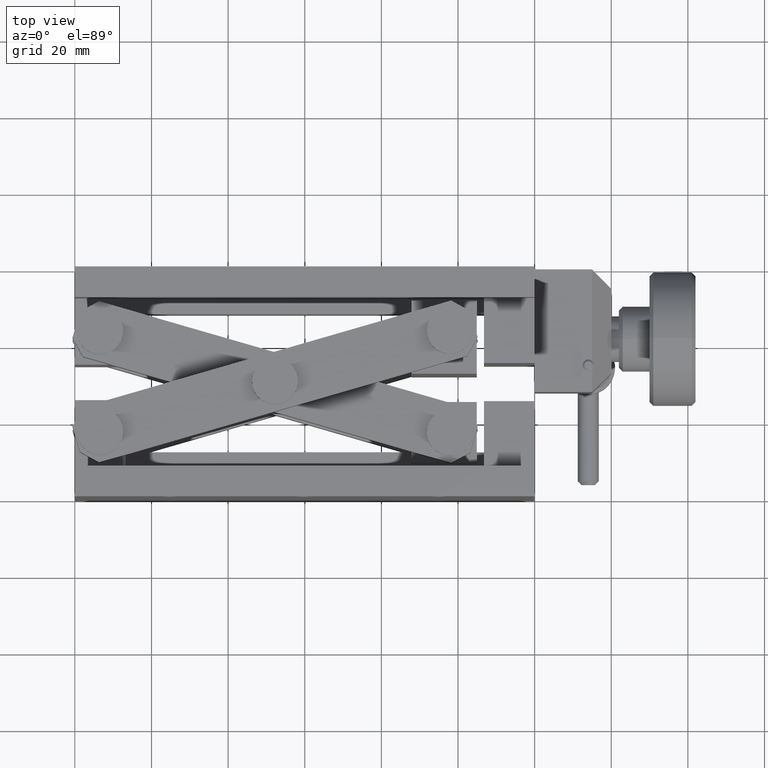
[diagram: clean part render]
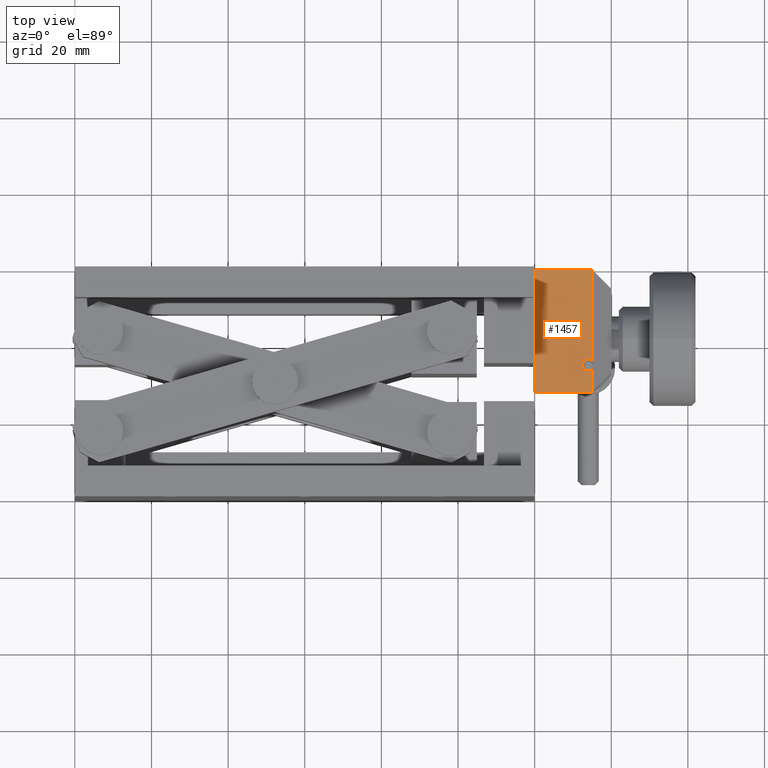
[diagram: same view with one face highlighted and labeled with its STEP entity id]
A machine part, top view. The second image highlights one B-rep face of the part: STEP entity #1457.
In plain terms, the highlighted planar face has unit normal (0, 0, 1).
Its self-contained STEP definition (entity closure, byte-faithful):
#643 = EDGE_CURVE ( 'NONE', #8612, #3859, #1787, .T. ) ;
#923 = DIRECTION ( 'NONE',  ( 0.000000000000000000, 0.000000000000000000, 1.000000000000000000 ) ) ;
#1254 = CARTESIAN_POINT ( 'NONE',  ( 120.0000000000000000, 34.99992954716100257, 12.00000000000000000 ) ) ;
#1457 = ADVANCED_FACE ( 'NONE', ( #8034 ), #5874, .T. ) ;
#1496 = DIRECTION ( 'NONE',  ( 0.000000000000000000, 0.000000000000000000, -1.000000000000000000 ) ) ;
#1536 = EDGE_CURVE ( 'NONE', #5427, #8970, #4371, .T. ) ;
#1571 = LINE ( 'NONE', #6389, #5187 ) ;
#1660 = VECTOR ( 'NONE', #8096, 1000.000000000000000 ) ;
#1787 = CIRCLE ( 'NONE', #4139, 1.500000000000001332 ) ;
#2094 = AXIS2_PLACEMENT_3D ( 'NONE', #3065, #923, #8528 ) ;
#2268 = CARTESIAN_POINT ( 'NONE',  ( 120.0000000000000000, 59.69992954716100542, 12.00000000000000000 ) ) ;
#2269 = VERTEX_POINT ( 'NONE', #2818 ) ;
#2341 = CARTESIAN_POINT ( 'NONE',  ( 135.0000000000000000, 35.81796353591090565, 12.00000000000000000 ) ) ;
#2387 = VERTEX_POINT ( 'NONE', #2268 ) ;
#2433 = EDGE_LOOP ( 'NONE', ( #5568, #8552, #7686, #3722, #3420, #4182, #3532, #8697 ) ) ;
#2818 = CARTESIAN_POINT ( 'NONE',  ( 135.0000000000000000, 59.69992954716100542, 12.00000000000000000 ) ) ;
#2912 = DIRECTION ( 'NONE',  ( 1.000000000000000000, 0.000000000000000000, 0.000000000000000000 ) ) ;
#2923 = AXIS2_PLACEMENT_3D ( 'NONE', #8342, #1496, #2912 ) ;
#3065 = CARTESIAN_POINT ( 'NONE',  ( 0.000000000000000000, 1.499929547160999910, 12.00000000000000000 ) ) ;
#3071 = DIRECTION ( 'NONE',  ( 0.000000000000000000, 0.000000000000000000, -1.000000000000000000 ) ) ;
#3225 = EDGE_CURVE ( 'NONE', #2387, #8331, #8531, .T. ) ;
#3420 = ORIENTED_EDGE ( 'NONE', *, *, #5980, .T. ) ;
#3532 = ORIENTED_EDGE ( 'NONE', *, *, #6164, .T. ) ;
#3659 = CIRCLE ( 'NONE', #2923, 1.500000000000001332 ) ;
#3722 = ORIENTED_EDGE ( 'NONE', *, *, #8046, .T. ) ;
#3805 = CARTESIAN_POINT ( 'NONE',  ( 135.0000000000000000, 1.499929547160999910, 12.00000000000000000 ) ) ;
#3859 = VERTEX_POINT ( 'NONE', #8186 ) ;
#4139 = AXIS2_PLACEMENT_3D ( 'NONE', #6565, #3071, #5878 ) ;
#4182 = ORIENTED_EDGE ( 'NONE', *, *, #3225, .T. ) ;
#4371 = LINE ( 'NONE', #8621, #6491 ) ;
#4375 = CARTESIAN_POINT ( 'NONE',  ( 120.0000000000000000, 59.69992954716100542, 12.00000000000000000 ) ) ;
#4459 = DIRECTION ( 'NONE',  ( 1.000000000000000000, 0.000000000000000000, 0.000000000000000000 ) ) ;
#4702 = CARTESIAN_POINT ( 'NONE',  ( 120.0000000000000000, 59.69992954716100542, 12.00000000000000000 ) ) ;
#5187 = VECTOR ( 'NONE', #6473, 1000.000000000000000 ) ;
#5229 = LINE ( 'NONE', #8069, #7655 ) ;
#5362 = VECTOR ( 'NONE', #6469, 1000.000000000000000 ) ;
#5427 = VERTEX_POINT ( 'NONE', #5669 ) ;
#5568 = ORIENTED_EDGE ( 'NONE', *, *, #6905, .T. ) ;
#5669 = CARTESIAN_POINT ( 'NONE',  ( 120.0000000000000000, 27.69992954716100186, 12.00000000000000000 ) ) ;
#5774 = CARTESIAN_POINT ( 'NONE',  ( 135.0000000000000000, 27.69992954716100186, 12.00000000000000000 ) ) ;
#5874 = PLANE ( 'NONE',  #2094 ) ;
#5878 = DIRECTION ( 'NONE',  ( 1.000000000000000000, 0.000000000000000000, 0.000000000000000000 ) ) ;
#5920 = CARTESIAN_POINT ( 'NONE',  ( 135.0000000000000000, 33.58189555841110518, 12.00000000000000000 ) ) ;
#5923 = LINE ( 'NONE', #3805, #6774 ) ;
#5970 = DIRECTION ( 'NONE',  ( 0.000000000000000000, 1.000000000000000000, 0.000000000000000000 ) ) ;
#5980 = EDGE_CURVE ( 'NONE', #2269, #2387, #5229, .T. ) ;
#6164 = EDGE_CURVE ( 'NONE', #8331, #5427, #8148, .T. ) ;
#6389 = CARTESIAN_POINT ( 'NONE',  ( 135.0000000000000000, 1.499929547160999910, 12.00000000000000000 ) ) ;
#6469 = DIRECTION ( 'NONE',  ( 0.000000000000000000, -1.000000000000000000, 0.000000000000000000 ) ) ;
#6473 = DIRECTION ( 'NONE',  ( 0.000000000000000000, 1.000000000000000000, 0.000000000000000000 ) ) ;
#6491 = VECTOR ( 'NONE', #4459, 1000.000000000000000 ) ;
#6565 = CARTESIAN_POINT ( 'NONE',  ( 134.0000000000000000, 34.69992954716099831, 12.00000000000000000 ) ) ;
#6774 = VECTOR ( 'NONE', #5970, 1000.000000000000000 ) ;
#6905 = EDGE_CURVE ( 'NONE', #8970, #8612, #5923, .T. ) ;
#7326 = DIRECTION ( 'NONE',  ( -1.000000000000000000, 0.000000000000000000, 0.000000000000000000 ) ) ;
#7655 = VECTOR ( 'NONE', #7326, 1000.000000000000000 ) ;
#7686 = ORIENTED_EDGE ( 'NONE', *, *, #8872, .T. ) ;
#8034 = FACE_OUTER_BOUND ( 'NONE', #2433, .T. ) ;
#8046 = EDGE_CURVE ( 'NONE', #8173, #2269, #1571, .T. ) ;
#8069 = CARTESIAN_POINT ( 'NONE',  ( 135.0000000000000000, 59.69992954716100542, 12.00000000000000000 ) ) ;
#8096 = DIRECTION ( 'NONE',  ( 0.000000000000000000, -1.000000000000000000, 0.000000000000000000 ) ) ;
#8148 = LINE ( 'NONE', #4702, #1660 ) ;
#8173 = VERTEX_POINT ( 'NONE', #2341 ) ;
#8186 = CARTESIAN_POINT ( 'NONE',  ( 132.5000000000000000, 34.69992954716099831, 12.00000000000000000 ) ) ;
#8331 = VERTEX_POINT ( 'NONE', #1254 ) ;
#8342 = CARTESIAN_POINT ( 'NONE',  ( 134.0000000000000000, 34.69992954716099831, 12.00000000000000000 ) ) ;
#8528 = DIRECTION ( 'NONE',  ( 1.000000000000000000, 0.000000000000000000, 0.000000000000000000 ) ) ;
#8531 = LINE ( 'NONE', #4375, #5362 ) ;
#8552 = ORIENTED_EDGE ( 'NONE', *, *, #643, .T. ) ;
#8612 = VERTEX_POINT ( 'NONE', #5920 ) ;
#8621 = CARTESIAN_POINT ( 'NONE',  ( 120.0000000000000000, 27.69992954716100186, 12.00000000000000000 ) ) ;
#8697 = ORIENTED_EDGE ( 'NONE', *, *, #1536, .T. ) ;
#8872 = EDGE_CURVE ( 'NONE', #3859, #8173, #3659, .T. ) ;
#8970 = VERTEX_POINT ( 'NONE', #5774 ) ;